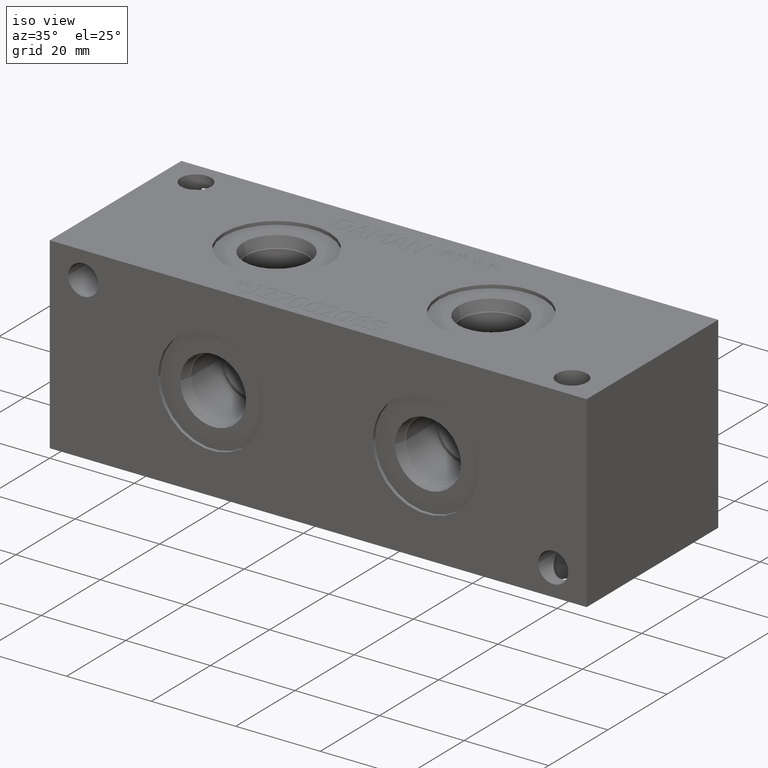
[diagram: clean part render]
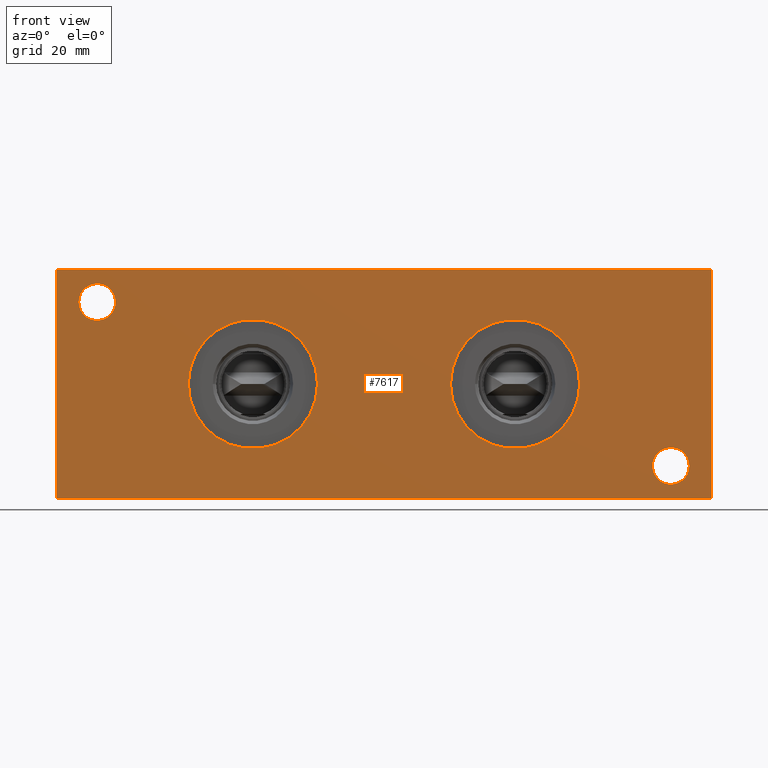
[diagram: tour spotlight — one face highlighted and labeled with its STEP entity id]
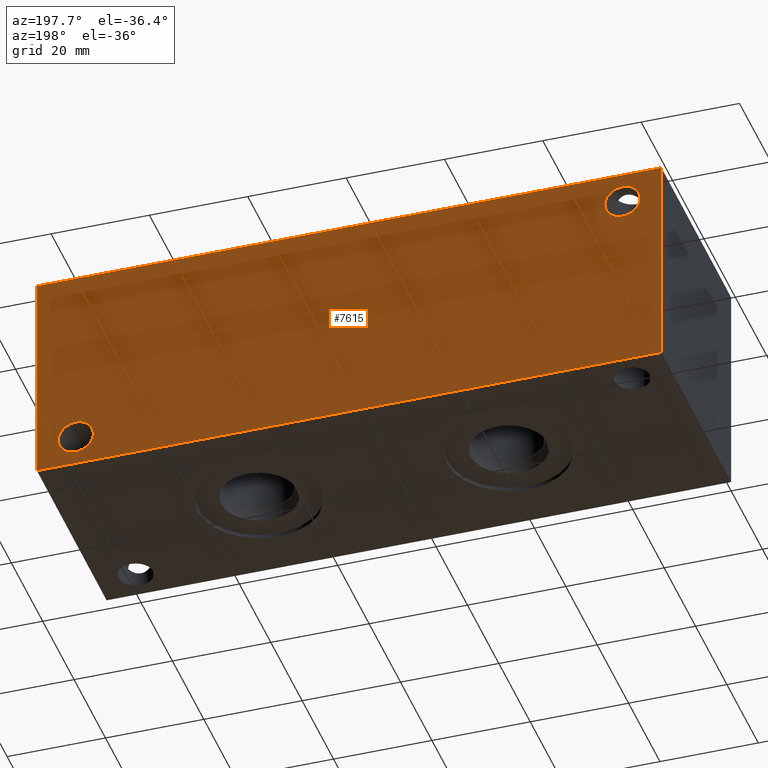
[diagram: tour spotlight — one face highlighted and labeled with its STEP entity id]
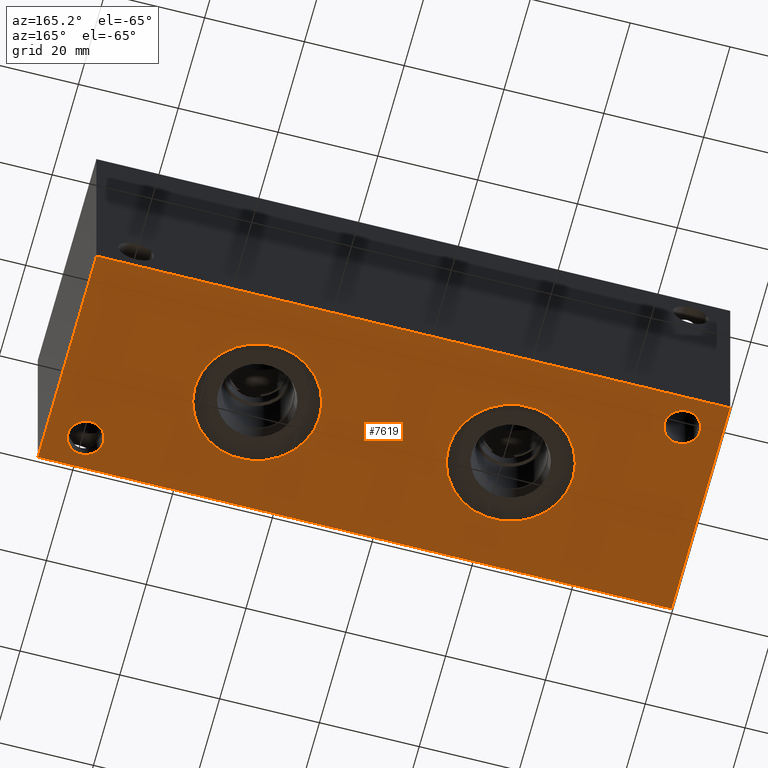
[diagram: tour spotlight — one face highlighted and labeled with its STEP entity id]
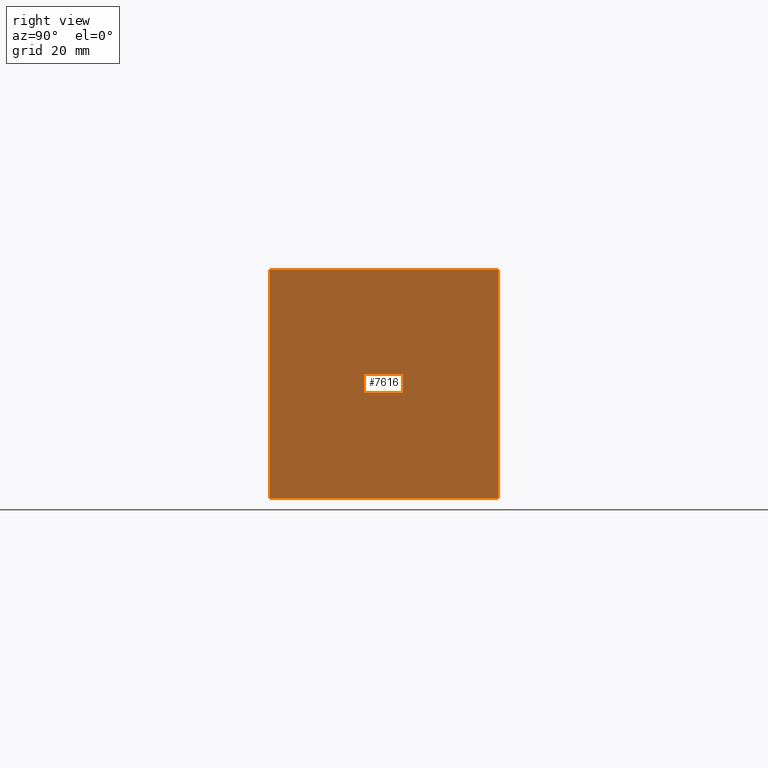
[diagram: tour spotlight — one face highlighted and labeled with its STEP entity id]
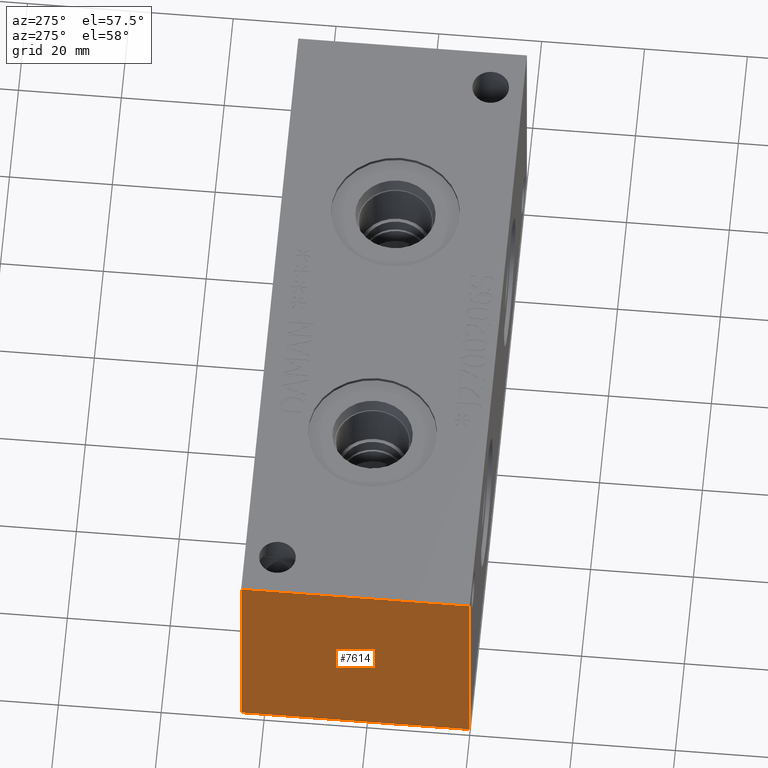
[diagram: tour spotlight — one face highlighted and labeled with its STEP entity id]
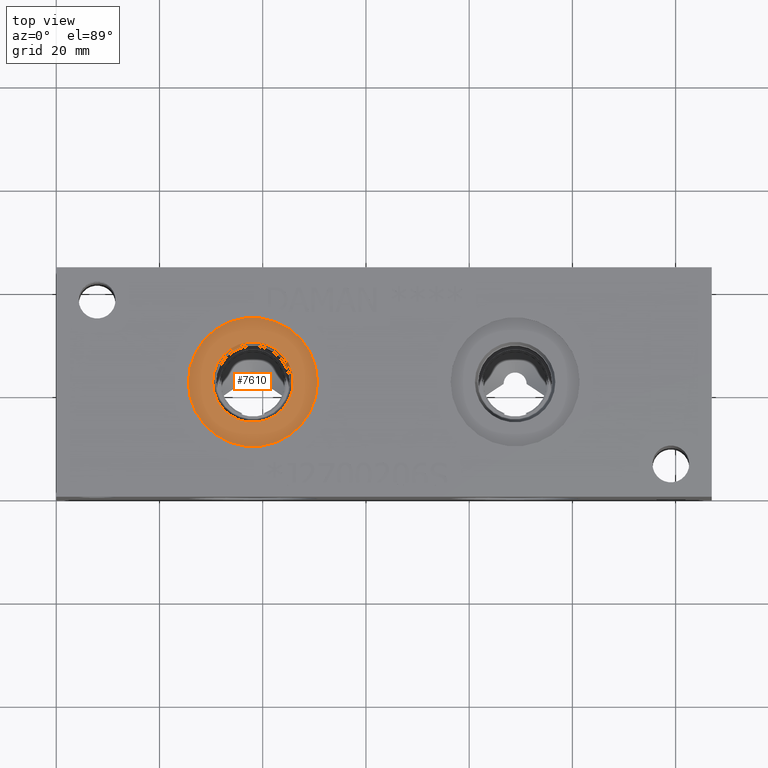
[diagram: tour spotlight — one face highlighted and labeled with its STEP entity id]
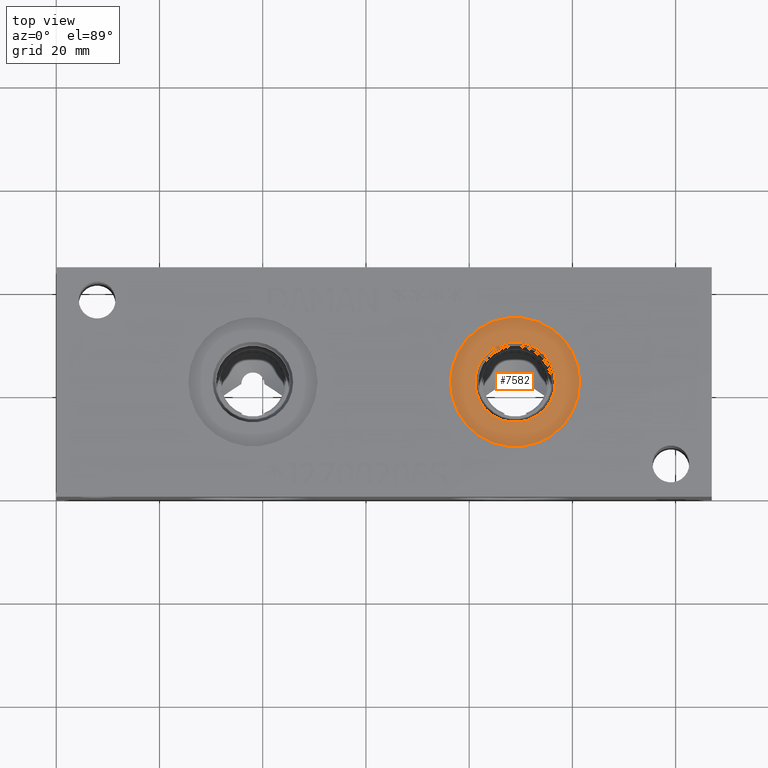
[diagram: tour spotlight — one face highlighted and labeled with its STEP entity id]
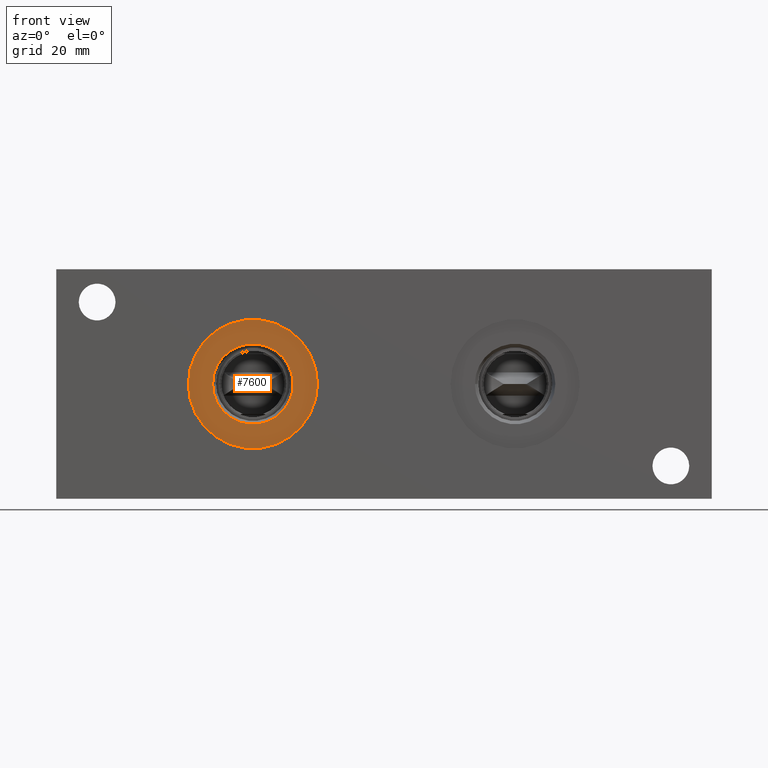
[diagram: tour spotlight — one face highlighted and labeled with its STEP entity id]
A machine part: a face-by-face anatomy tour. The part has 391 B-rep faces; the first image is the clean iso view, then the 8 largest visible faces are spotlighted one at a time (largest first), each with its STEP entity span.

Face 1 — front view, entity #7617. In plain terms, the highlighted planar face has unit normal (0, -1, 0).
Definition (entity closure, byte-faithful):
#164=CIRCLE('',#7944,12.5095);
#165=CIRCLE('',#7945,12.5095);
#190=CIRCLE('',#7986,3.5687);
#191=CIRCLE('',#7987,3.5687);
#193=CIRCLE('',#7995,3.5687);
#194=CIRCLE('',#7996,3.5687);
#205=CIRCLE('',#8022,12.5095);
#206=CIRCLE('',#8023,12.5095);
#273=FACE_BOUND('',#1446,.T.);
#274=FACE_BOUND('',#1447,.T.);
#275=FACE_BOUND('',#1448,.T.);
#276=FACE_BOUND('',#1449,.T.);
#1010=FACE_OUTER_BOUND('',#1445,.T.);
#1445=EDGE_LOOP('',(#6688,#6689,#6690,#6691));
#1446=EDGE_LOOP('',(#6692,#6693));
#1447=EDGE_LOOP('',(#6694,#6695));
#1448=EDGE_LOOP('',(#6696,#6697));
#1449=EDGE_LOOP('',(#6698,#6699));
#1704=LINE('',#11789,#2385);
#2130=LINE('',#13239,#2811);
#2135=LINE('',#13248,#2816);
#2136=LINE('',#13250,#2817);
#2385=VECTOR('',#8438,10.);
#2811=VECTOR('',#9596,10.);
#2816=VECTOR('',#9605,10.);
#2817=VECTOR('',#9608,10.);
#3114=VERTEX_POINT('',#11787);
#3115=VERTEX_POINT('',#11788);
#3455=VERTEX_POINT('',#13013);
#3456=VERTEX_POINT('',#13014);
#3479=VERTEX_POINT('',#13089);
#3480=VERTEX_POINT('',#13090);
#3484=VERTEX_POINT('',#13105);
#3485=VERTEX_POINT('',#13106);
#3496=VERTEX_POINT('',#13161);
#3497=VERTEX_POINT('',#13162);
#3521=VERTEX_POINT('',#13237);
#3523=VERTEX_POINT('',#13246);
#3968=EDGE_CURVE('',#3114,#3115,#1704,.T.);
#4474=EDGE_CURVE('',#3455,#3456,#164,.T.);
#4475=EDGE_CURVE('',#3456,#3455,#165,.T.);
#4510=EDGE_CURVE('',#3479,#3480,#190,.T.);
#4511=EDGE_CURVE('',#3480,#3479,#191,.T.);
#4519=EDGE_CURVE('',#3484,#3485,#193,.T.);
#4520=EDGE_CURVE('',#3485,#3484,#194,.T.);
#4543=EDGE_CURVE('',#3496,#3497,#205,.T.);
#4544=EDGE_CURVE('',#3497,#3496,#206,.T.);
#4580=EDGE_CURVE('',#3521,#3114,#2130,.T.);
#4585=EDGE_CURVE('',#3523,#3115,#2135,.T.);
#4586=EDGE_CURVE('',#3521,#3523,#2136,.T.);
#6688=ORIENTED_EDGE('',*,*,#4586,.T.);
#6689=ORIENTED_EDGE('',*,*,#4585,.T.);
#6690=ORIENTED_EDGE('',*,*,#3968,.F.);
#6691=ORIENTED_EDGE('',*,*,#4580,.F.);
#6692=ORIENTED_EDGE('',*,*,#4474,.T.);
#6693=ORIENTED_EDGE('',*,*,#4475,.T.);
#6694=ORIENTED_EDGE('',*,*,#4510,.T.);
#6695=ORIENTED_EDGE('',*,*,#4511,.T.);
#6696=ORIENTED_EDGE('',*,*,#4519,.T.);
#6697=ORIENTED_EDGE('',*,*,#4520,.T.);
#6698=ORIENTED_EDGE('',*,*,#4543,.T.);
#6699=ORIENTED_EDGE('',*,*,#4544,.T.);
#6927=PLANE('',#8063);
#7617=ADVANCED_FACE('',(#1010,#273,#274,#275,#276),#6927,.T.);
#7944=AXIS2_PLACEMENT_3D('',#13015,#9330,#9331);
#7945=AXIS2_PLACEMENT_3D('',#13016,#9332,#9333);
#7986=AXIS2_PLACEMENT_3D('',#13091,#9424,#9425);
#7987=AXIS2_PLACEMENT_3D('',#13092,#9426,#9427);
#7995=AXIS2_PLACEMENT_3D('',#13107,#9444,#9445);
#7996=AXIS2_PLACEMENT_3D('',#13108,#9446,#9447);
#8022=AXIS2_PLACEMENT_3D('',#13163,#9505,#9506);
#8023=AXIS2_PLACEMENT_3D('',#13164,#9507,#9508);
#8063=AXIS2_PLACEMENT_3D('',#13249,#9606,#9607);
#8438=DIRECTION('',(1.,0.,0.));
#9330=DIRECTION('center_axis',(0.,1.,0.));
#9331=DIRECTION('ref_axis',(1.,0.,0.));
#9332=DIRECTION('center_axis',(0.,1.,0.));
#9333=DIRECTION('ref_axis',(1.,0.,0.));
#9424=DIRECTION('center_axis',(0.,1.,0.));
#9425=DIRECTION('ref_axis',(1.,0.,0.));
#9426=DIRECTION('center_axis',(0.,1.,0.));
#9427=DIRECTION('ref_axis',(1.,0.,0.));
#9444=DIRECTION('center_axis',(0.,1.,0.));
#9445=DIRECTION('ref_axis',(1.,0.,0.));
#9446=DIRECTION('center_axis',(0.,1.,0.));
#9447=DIRECTION('ref_axis',(1.,0.,0.));
#9505=DIRECTION('center_axis',(0.,1.,0.));
#9506=DIRECTION('ref_axis',(1.,0.,0.));
#9507=DIRECTION('center_axis',(0.,1.,0.));
#9508=DIRECTION('ref_axis',(1.,0.,0.));
#9596=DIRECTION('',(0.,0.,1.));
#9605=DIRECTION('',(0.,0.,1.));
#9606=DIRECTION('center_axis',(0.,-1.,0.));
#9607=DIRECTION('ref_axis',(1.,0.,0.));
#9608=DIRECTION('',(1.,0.,0.));
#11787=CARTESIAN_POINT('',(0.,0.,44.45));
#11788=CARTESIAN_POINT('',(127.,0.,44.45));
#11789=CARTESIAN_POINT('',(0.,0.,44.45));
#13013=CARTESIAN_POINT('',(101.4095,0.,22.225));
#13014=CARTESIAN_POINT('',(76.3905,0.,22.225));
#13015=CARTESIAN_POINT('Origin',(88.9,0.,22.225));
#13016=CARTESIAN_POINT('Origin',(88.9,0.,22.225));
#13089=CARTESIAN_POINT('',(11.4935,0.,38.1));
#13090=CARTESIAN_POINT('',(4.3561,-1.77635683940025E-14,38.1));
#13091=CARTESIAN_POINT('Origin',(7.9248,0.,38.1));
#13092=CARTESIAN_POINT('Origin',(7.9248,0.,38.1));
#13105=CARTESIAN_POINT('',(122.6439,0.,6.35));
#13106=CARTESIAN_POINT('',(115.5065,-1.77635683940025E-14,6.35));
#13107=CARTESIAN_POINT('Origin',(119.0752,0.,6.35));
#13108=CARTESIAN_POINT('Origin',(119.0752,0.,6.35));
#13161=CARTESIAN_POINT('',(50.6095,0.,22.225));
#13162=CARTESIAN_POINT('',(25.5905,0.,22.225));
#13163=CARTESIAN_POINT('Origin',(38.1,0.,22.225));
#13164=CARTESIAN_POINT('Origin',(38.1,0.,22.225));
#13237=CARTESIAN_POINT('',(0.,0.,0.));
#13239=CARTESIAN_POINT('',(0.,0.,0.));
#13246=CARTESIAN_POINT('',(127.,0.,0.));
#13248=CARTESIAN_POINT('',(127.,0.,0.));
#13249=CARTESIAN_POINT('Origin',(0.,0.,0.));
#13250=CARTESIAN_POINT('',(0.,0.,0.));

Face 2 — auxiliary view, entity #7615. In plain terms, the highlighted planar face has unit normal (0, 1, 0).
Definition (entity closure, byte-faithful):
#192=CIRCLE('',#7993,3.5687);
#195=CIRCLE('',#8002,3.5687);
#271=FACE_BOUND('',#1442,.T.);
#272=FACE_BOUND('',#1443,.T.);
#1008=FACE_OUTER_BOUND('',#1441,.T.);
#1441=EDGE_LOOP('',(#6678,#6679,#6680,#6681));
#1442=EDGE_LOOP('',(#6682));
#1443=EDGE_LOOP('',(#6683));
#1706=LINE('',#11793,#2387);
#2131=LINE('',#13240,#2812);
#2132=LINE('',#13243,#2813);
#2133=LINE('',#13244,#2814);
#2387=VECTOR('',#8440,10.);
#2812=VECTOR('',#9597,10.);
#2813=VECTOR('',#9600,10.);
#2814=VECTOR('',#9601,10.);
#3116=VERTEX_POINT('',#11790);
#3117=VERTEX_POINT('',#11792);
#3483=VERTEX_POINT('',#13101);
#3488=VERTEX_POINT('',#13117);
#3520=VERTEX_POINT('',#13236);
#3522=VERTEX_POINT('',#13242);
#3970=EDGE_CURVE('',#3116,#3117,#1706,.T.);
#4518=EDGE_CURVE('',#3483,#3483,#192,.T.);
#4527=EDGE_CURVE('',#3488,#3488,#195,.T.);
#4581=EDGE_CURVE('',#3520,#3117,#2131,.T.);
#4582=EDGE_CURVE('',#3522,#3520,#2132,.T.);
#4583=EDGE_CURVE('',#3522,#3116,#2133,.T.);
#6678=ORIENTED_EDGE('',*,*,#4582,.T.);
#6679=ORIENTED_EDGE('',*,*,#4581,.T.);
#6680=ORIENTED_EDGE('',*,*,#3970,.F.);
#6681=ORIENTED_EDGE('',*,*,#4583,.F.);
#6682=ORIENTED_EDGE('',*,*,#4518,.T.);
#6683=ORIENTED_EDGE('',*,*,#4527,.T.);
#6925=PLANE('',#8061);
#7615=ADVANCED_FACE('',(#1008,#271,#272),#6925,.T.);
#7993=AXIS2_PLACEMENT_3D('',#13103,#9440,#9441);
#8002=AXIS2_PLACEMENT_3D('',#13119,#9460,#9461);
#8061=AXIS2_PLACEMENT_3D('',#13241,#9598,#9599);
#8440=DIRECTION('',(-1.,0.,0.));
#9440=DIRECTION('center_axis',(0.,-1.,0.));
#9441=DIRECTION('ref_axis',(1.,0.,0.));
#9460=DIRECTION('center_axis',(0.,-1.,0.));
#9461=DIRECTION('ref_axis',(1.,0.,0.));
#9597=DIRECTION('',(0.,0.,1.));
#9598=DIRECTION('center_axis',(0.,1.,0.));
#9599=DIRECTION('ref_axis',(-1.,0.,0.));
#9600=DIRECTION('',(-1.,0.,0.));
#9601=DIRECTION('',(0.,0.,1.));
#11790=CARTESIAN_POINT('',(127.,44.45,44.45));
#11792=CARTESIAN_POINT('',(0.,44.45,44.45));
#11793=CARTESIAN_POINT('',(127.,44.45,44.45));
#13101=CARTESIAN_POINT('',(4.3561,44.45,38.1));
#13103=CARTESIAN_POINT('Origin',(7.9248,44.45,38.1));
#13117=CARTESIAN_POINT('',(115.5065,44.45,6.35));
#13119=CARTESIAN_POINT('Origin',(119.0752,44.45,6.35));
#13236=CARTESIAN_POINT('',(0.,44.45,0.));
#13240=CARTESIAN_POINT('',(0.,44.45,0.));
#13241=CARTESIAN_POINT('Origin',(127.,44.45,0.));
#13242=CARTESIAN_POINT('',(127.,44.45,0.));
#13243=CARTESIAN_POINT('',(127.,44.45,0.));
#13244=CARTESIAN_POINT('',(127.,44.45,0.));

Face 3 — auxiliary view, entity #7619. In plain terms, the highlighted planar face has unit normal (0, 0, 1).
Definition (entity closure, byte-faithful):
#109=CIRCLE('',#7842,12.5095);
#110=CIRCLE('',#7843,12.5095);
#154=CIRCLE('',#7929,12.5095);
#155=CIRCLE('',#7930,12.5095);
#215=CIRCLE('',#8037,3.5687);
#216=CIRCLE('',#8039,3.5687);
#277=FACE_BOUND('',#1452,.T.);
#278=FACE_BOUND('',#1453,.T.);
#279=FACE_BOUND('',#1454,.T.);
#280=FACE_BOUND('',#1455,.T.);
#1012=FACE_OUTER_BOUND('',#1451,.T.);
#1451=EDGE_LOOP('',(#6703,#6704,#6705,#6706));
#1452=EDGE_LOOP('',(#6707,#6708));
#1453=EDGE_LOOP('',(#6709,#6710));
#1454=EDGE_LOOP('',(#6711));
#1455=EDGE_LOOP('',(#6712));
#2129=LINE('',#13238,#2810);
#2132=LINE('',#13243,#2813);
#2134=LINE('',#13247,#2815);
#2136=LINE('',#13250,#2817);
#2810=VECTOR('',#9595,10.);
#2813=VECTOR('',#9600,10.);
#2815=VECTOR('',#9604,10.);
#2817=VECTOR('',#9608,10.);
#3388=VERTEX_POINT('',#12717);
#3389=VERTEX_POINT('',#12718);
#3445=VERTEX_POINT('',#12984);
#3446=VERTEX_POINT('',#12985);
#3506=VERTEX_POINT('',#13190);
#3507=VERTEX_POINT('',#13194);
#3520=VERTEX_POINT('',#13236);
#3521=VERTEX_POINT('',#13237);
#3522=VERTEX_POINT('',#13242);
#3523=VERTEX_POINT('',#13246);
#4373=EDGE_CURVE('',#3388,#3389,#109,.T.);
#4374=EDGE_CURVE('',#3389,#3388,#110,.T.);
#4460=EDGE_CURVE('',#3445,#3446,#154,.T.);
#4461=EDGE_CURVE('',#3446,#3445,#155,.T.);
#4558=EDGE_CURVE('',#3506,#3506,#215,.T.);
#4560=EDGE_CURVE('',#3507,#3507,#216,.T.);
#4579=EDGE_CURVE('',#3520,#3521,#2129,.T.);
#4582=EDGE_CURVE('',#3522,#3520,#2132,.T.);
#4584=EDGE_CURVE('',#3523,#3522,#2134,.T.);
#4586=EDGE_CURVE('',#3521,#3523,#2136,.T.);
#6703=ORIENTED_EDGE('',*,*,#4586,.F.);
#6704=ORIENTED_EDGE('',*,*,#4579,.F.);
#6705=ORIENTED_EDGE('',*,*,#4582,.F.);
#6706=ORIENTED_EDGE('',*,*,#4584,.F.);
#6707=ORIENTED_EDGE('',*,*,#4373,.T.);
#6708=ORIENTED_EDGE('',*,*,#4374,.T.);
#6709=ORIENTED_EDGE('',*,*,#4460,.T.);
#6710=ORIENTED_EDGE('',*,*,#4461,.T.);
#6711=ORIENTED_EDGE('',*,*,#4558,.T.);
#6712=ORIENTED_EDGE('',*,*,#4560,.T.);
#6929=PLANE('',#8065);
#7619=ADVANCED_FACE('',(#1012,#277,#278,#279,#280),#6929,.F.);
#7842=AXIS2_PLACEMENT_3D('',#12719,#9113,#9114);
#7843=AXIS2_PLACEMENT_3D('',#12720,#9115,#9116);
#7929=AXIS2_PLACEMENT_3D('',#12986,#9296,#9297);
#7930=AXIS2_PLACEMENT_3D('',#12987,#9298,#9299);
#8037=AXIS2_PLACEMENT_3D('',#13192,#9540,#9541);
#8039=AXIS2_PLACEMENT_3D('',#13196,#9545,#9546);
#8065=AXIS2_PLACEMENT_3D('',#13252,#9611,#9612);
#9113=DIRECTION('center_axis',(0.,0.,1.));
#9114=DIRECTION('ref_axis',(1.,0.,0.));
#9115=DIRECTION('center_axis',(0.,0.,1.));
#9116=DIRECTION('ref_axis',(1.,0.,0.));
#9296=DIRECTION('center_axis',(0.,0.,1.));
#9297=DIRECTION('ref_axis',(1.,0.,0.));
#9298=DIRECTION('center_axis',(0.,0.,1.));
#9299=DIRECTION('ref_axis',(1.,0.,0.));
#9540=DIRECTION('center_axis',(0.,0.,1.));
#9541=DIRECTION('ref_axis',(1.,0.,0.));
#9545=DIRECTION('center_axis',(0.,0.,1.));
#9546=DIRECTION('ref_axis',(1.,0.,0.));
#9595=DIRECTION('',(0.,-1.,0.));
#9600=DIRECTION('',(-1.,0.,0.));
#9604=DIRECTION('',(0.,1.,0.));
#9608=DIRECTION('',(1.,0.,0.));
#9611=DIRECTION('center_axis',(0.,0.,1.));
#9612=DIRECTION('ref_axis',(1.,0.,0.));
#12717=CARTESIAN_POINT('',(101.4095,22.225,0.));
#12718=CARTESIAN_POINT('',(76.3905,22.225,0.));
#12719=CARTESIAN_POINT('Origin',(88.9,22.225,0.));
#12720=CARTESIAN_POINT('Origin',(88.9,22.225,0.));
#12984=CARTESIAN_POINT('',(50.6095,22.225,0.));
#12985=CARTESIAN_POINT('',(25.5905,22.225,0.));
#12986=CARTESIAN_POINT('Origin',(38.1,22.225,0.));
#12987=CARTESIAN_POINT('Origin',(38.1,22.225,0.));
#13190=CARTESIAN_POINT('',(4.3561,38.1,0.));
#13192=CARTESIAN_POINT('Origin',(7.9248,38.1,0.));
#13194=CARTESIAN_POINT('',(115.5065,6.35,0.));
#13196=CARTESIAN_POINT('Origin',(119.0752,6.35,0.));
#13236=CARTESIAN_POINT('',(0.,44.45,0.));
#13237=CARTESIAN_POINT('',(0.,0.,0.));
#13238=CARTESIAN_POINT('',(0.,44.45,0.));
#13242=CARTESIAN_POINT('',(127.,44.45,0.));
#13243=CARTESIAN_POINT('',(127.,44.45,0.));
#13246=CARTESIAN_POINT('',(127.,0.,0.));
#13247=CARTESIAN_POINT('',(127.,0.,0.));
#13250=CARTESIAN_POINT('',(0.,0.,0.));
#13252=CARTESIAN_POINT('Origin',(63.5,22.225,0.));

Face 4 — right view, entity #7616. In plain terms, the highlighted planar face has unit normal (1, 0, 0).
Definition (entity closure, byte-faithful):
#1009=FACE_OUTER_BOUND('',#1444,.T.);
#1444=EDGE_LOOP('',(#6684,#6685,#6686,#6687));
#1705=LINE('',#11791,#2386);
#2133=LINE('',#13244,#2814);
#2134=LINE('',#13247,#2815);
#2135=LINE('',#13248,#2816);
#2386=VECTOR('',#8439,10.);
#2814=VECTOR('',#9601,10.);
#2815=VECTOR('',#9604,10.);
#2816=VECTOR('',#9605,10.);
#3115=VERTEX_POINT('',#11788);
#3116=VERTEX_POINT('',#11790);
#3522=VERTEX_POINT('',#13242);
#3523=VERTEX_POINT('',#13246);
#3969=EDGE_CURVE('',#3115,#3116,#1705,.T.);
#4583=EDGE_CURVE('',#3522,#3116,#2133,.T.);
#4584=EDGE_CURVE('',#3523,#3522,#2134,.T.);
#4585=EDGE_CURVE('',#3523,#3115,#2135,.T.);
#6684=ORIENTED_EDGE('',*,*,#4584,.T.);
#6685=ORIENTED_EDGE('',*,*,#4583,.T.);
#6686=ORIENTED_EDGE('',*,*,#3969,.F.);
#6687=ORIENTED_EDGE('',*,*,#4585,.F.);
#6926=PLANE('',#8062);
#7616=ADVANCED_FACE('',(#1009),#6926,.T.);
#8062=AXIS2_PLACEMENT_3D('',#13245,#9602,#9603);
#8439=DIRECTION('',(0.,1.,0.));
#9601=DIRECTION('',(0.,0.,1.));
#9602=DIRECTION('center_axis',(1.,0.,0.));
#9603=DIRECTION('ref_axis',(0.,1.,0.));
#9604=DIRECTION('',(0.,1.,0.));
#9605=DIRECTION('',(0.,0.,1.));
#11788=CARTESIAN_POINT('',(127.,0.,44.45));
#11790=CARTESIAN_POINT('',(127.,44.45,44.45));
#11791=CARTESIAN_POINT('',(127.,0.,44.45));
#13242=CARTESIAN_POINT('',(127.,44.45,0.));
#13244=CARTESIAN_POINT('',(127.,44.45,0.));
#13245=CARTESIAN_POINT('Origin',(127.,0.,0.));
#13246=CARTESIAN_POINT('',(127.,0.,0.));
#13247=CARTESIAN_POINT('',(127.,0.,0.));
#13248=CARTESIAN_POINT('',(127.,0.,0.));

Face 5 — auxiliary view, entity #7614. In plain terms, the highlighted planar face has unit normal (-1, 0, 0).
Definition (entity closure, byte-faithful):
#1007=FACE_OUTER_BOUND('',#1440,.T.);
#1440=EDGE_LOOP('',(#6674,#6675,#6676,#6677));
#1707=LINE('',#11794,#2388);
#2129=LINE('',#13238,#2810);
#2130=LINE('',#13239,#2811);
#2131=LINE('',#13240,#2812);
#2388=VECTOR('',#8441,10.);
#2810=VECTOR('',#9595,10.);
#2811=VECTOR('',#9596,10.);
#2812=VECTOR('',#9597,10.);
#3114=VERTEX_POINT('',#11787);
#3117=VERTEX_POINT('',#11792);
#3520=VERTEX_POINT('',#13236);
#3521=VERTEX_POINT('',#13237);
#3971=EDGE_CURVE('',#3117,#3114,#1707,.T.);
#4579=EDGE_CURVE('',#3520,#3521,#2129,.T.);
#4580=EDGE_CURVE('',#3521,#3114,#2130,.T.);
#4581=EDGE_CURVE('',#3520,#3117,#2131,.T.);
#6674=ORIENTED_EDGE('',*,*,#4579,.T.);
#6675=ORIENTED_EDGE('',*,*,#4580,.T.);
#6676=ORIENTED_EDGE('',*,*,#3971,.F.);
#6677=ORIENTED_EDGE('',*,*,#4581,.F.);
#6924=PLANE('',#8060);
#7614=ADVANCED_FACE('',(#1007),#6924,.T.);
#8060=AXIS2_PLACEMENT_3D('',#13235,#9593,#9594);
#8441=DIRECTION('',(0.,-1.,0.));
#9593=DIRECTION('center_axis',(-1.,0.,0.));
#9594=DIRECTION('ref_axis',(0.,-1.,0.));
#9595=DIRECTION('',(0.,-1.,0.));
#9596=DIRECTION('',(0.,0.,1.));
#9597=DIRECTION('',(0.,0.,1.));
#11787=CARTESIAN_POINT('',(0.,0.,44.45));
#11792=CARTESIAN_POINT('',(0.,44.45,44.45));
#11794=CARTESIAN_POINT('',(0.,44.45,44.45));
#13235=CARTESIAN_POINT('Origin',(0.,44.45,0.));
#13236=CARTESIAN_POINT('',(0.,44.45,0.));
#13237=CARTESIAN_POINT('',(0.,0.,0.));
#13238=CARTESIAN_POINT('',(0.,44.45,0.));
#13239=CARTESIAN_POINT('',(0.,0.,0.));
#13240=CARTESIAN_POINT('',(0.,44.45,0.));

Face 6 — top view, entity #7610. In plain terms, the highlighted planar face has unit normal (0, 0, -1).
Definition (entity closure, byte-faithful):
#221=CIRCLE('',#8048,12.5095);
#222=CIRCLE('',#8049,12.5095);
#223=CIRCLE('',#8051,7.7978);
#224=CIRCLE('',#8052,7.7978);
#270=FACE_BOUND('',#1436,.T.);
#1003=FACE_OUTER_BOUND('',#1435,.T.);
#1435=EDGE_LOOP('',(#6653,#6654));
#1436=EDGE_LOOP('',(#6655,#6656));
#3512=VERTEX_POINT('',#13211);
#3513=VERTEX_POINT('',#13213);
#3514=VERTEX_POINT('',#13217);
#3515=VERTEX_POINT('',#13218);
#4568=EDGE_CURVE('',#3512,#3513,#221,.T.);
#4569=EDGE_CURVE('',#3513,#3512,#222,.T.);
#4570=EDGE_CURVE('',#3514,#3515,#223,.T.);
#4571=EDGE_CURVE('',#3515,#3514,#224,.T.);
#6653=ORIENTED_EDGE('',*,*,#4569,.F.);
#6654=ORIENTED_EDGE('',*,*,#4568,.F.);
#6655=ORIENTED_EDGE('',*,*,#4570,.T.);
#6656=ORIENTED_EDGE('',*,*,#4571,.T.);
#6923=PLANE('',#8050);
#7610=ADVANCED_FACE('',(#1003,#270),#6923,.F.);
#8048=AXIS2_PLACEMENT_3D('',#13214,#9566,#9567);
#8049=AXIS2_PLACEMENT_3D('',#13215,#9568,#9569);
#8050=AXIS2_PLACEMENT_3D('',#13216,#9570,#9571);
#8051=AXIS2_PLACEMENT_3D('',#13219,#9572,#9573);
#8052=AXIS2_PLACEMENT_3D('',#13220,#9574,#9575);
#9566=DIRECTION('center_axis',(0.,0.,-1.));
#9567=DIRECTION('ref_axis',(1.,0.,0.));
#9568=DIRECTION('center_axis',(0.,0.,-1.));
#9569=DIRECTION('ref_axis',(1.,0.,0.));
#9570=DIRECTION('center_axis',(0.,0.,-1.));
#9571=DIRECTION('ref_axis',(-1.,0.,0.));
#9572=DIRECTION('center_axis',(0.,0.,-1.));
#9573=DIRECTION('ref_axis',(1.,0.,0.));
#9574=DIRECTION('center_axis',(0.,0.,-1.));
#9575=DIRECTION('ref_axis',(1.,0.,0.));
#13211=CARTESIAN_POINT('',(25.5905,22.225,43.6626));
#13213=CARTESIAN_POINT('',(50.6095,22.225,43.6626));
#13214=CARTESIAN_POINT('Origin',(38.1,22.225,43.6626));
#13215=CARTESIAN_POINT('Origin',(38.1,22.225,43.6626));
#13216=CARTESIAN_POINT('Origin',(45.8978,22.225,43.6626));
#13217=CARTESIAN_POINT('',(45.8978,22.225,43.6626));
#13218=CARTESIAN_POINT('',(30.3022,22.225,43.6626));
#13219=CARTESIAN_POINT('Origin',(38.1,22.225,43.6626));
#13220=CARTESIAN_POINT('Origin',(38.1,22.225,43.6626));

Face 7 — top view, entity #7582. In plain terms, the highlighted planar face has unit normal (0, 0, -1).
Definition (entity closure, byte-faithful):
#182=CIRCLE('',#7973,12.5095);
#183=CIRCLE('',#7974,12.5095);
#184=CIRCLE('',#7976,7.79780000000001);
#185=CIRCLE('',#7977,7.79780000000001);
#265=FACE_BOUND('',#1403,.T.);
#975=FACE_OUTER_BOUND('',#1402,.T.);
#1402=EDGE_LOOP('',(#6502,#6503));
#1403=EDGE_LOOP('',(#6504,#6505));
#3471=VERTEX_POINT('',#13064);
#3472=VERTEX_POINT('',#13066);
#3473=VERTEX_POINT('',#13070);
#3474=VERTEX_POINT('',#13071);
#4499=EDGE_CURVE('',#3471,#3472,#182,.T.);
#4500=EDGE_CURVE('',#3472,#3471,#183,.T.);
#4501=EDGE_CURVE('',#3473,#3474,#184,.T.);
#4502=EDGE_CURVE('',#3474,#3473,#185,.T.);
#6502=ORIENTED_EDGE('',*,*,#4500,.F.);
#6503=ORIENTED_EDGE('',*,*,#4499,.F.);
#6504=ORIENTED_EDGE('',*,*,#4501,.T.);
#6505=ORIENTED_EDGE('',*,*,#4502,.T.);
#6918=PLANE('',#7975);
#7582=ADVANCED_FACE('',(#975,#265),#6918,.F.);
#7973=AXIS2_PLACEMENT_3D('',#13067,#9395,#9396);
#7974=AXIS2_PLACEMENT_3D('',#13068,#9397,#9398);
#7975=AXIS2_PLACEMENT_3D('',#13069,#9399,#9400);
#7976=AXIS2_PLACEMENT_3D('',#13072,#9401,#9402);
#7977=AXIS2_PLACEMENT_3D('',#13073,#9403,#9404);
#9395=DIRECTION('center_axis',(0.,0.,-1.));
#9396=DIRECTION('ref_axis',(1.,0.,0.));
#9397=DIRECTION('center_axis',(0.,0.,-1.));
#9398=DIRECTION('ref_axis',(1.,0.,0.));
#9399=DIRECTION('center_axis',(0.,0.,-1.));
#9400=DIRECTION('ref_axis',(-1.,0.,0.));
#9401=DIRECTION('center_axis',(0.,0.,-1.));
#9402=DIRECTION('ref_axis',(1.,0.,0.));
#9403=DIRECTION('center_axis',(0.,0.,-1.));
#9404=DIRECTION('ref_axis',(1.,0.,0.));
#13064=CARTESIAN_POINT('',(76.3905,22.225,43.6626));
#13066=CARTESIAN_POINT('',(101.4095,22.225,43.6626));
#13067=CARTESIAN_POINT('Origin',(88.9,22.225,43.6626));
#13068=CARTESIAN_POINT('Origin',(88.9,22.225,43.6626));
#13069=CARTESIAN_POINT('Origin',(96.6978,22.225,43.6626));
#13070=CARTESIAN_POINT('',(96.6978,22.225,43.6626));
#13071=CARTESIAN_POINT('',(81.1022,22.225,43.6626));
#13072=CARTESIAN_POINT('Origin',(88.9,22.225,43.6626));
#13073=CARTESIAN_POINT('Origin',(88.9,22.225,43.6626));

Face 8 — front view, entity #7600. In plain terms, the highlighted planar face has unit normal (0, 1, 0).
Definition (entity closure, byte-faithful):
#207=CIRCLE('',#8024,12.5095);
#208=CIRCLE('',#8025,12.5095);
#209=CIRCLE('',#8027,7.7978);
#210=CIRCLE('',#8028,7.7978);
#268=FACE_BOUND('',#1424,.T.);
#993=FACE_OUTER_BOUND('',#1423,.T.);
#1423=EDGE_LOOP('',(#6600,#6601));
#1424=EDGE_LOOP('',(#6602,#6603));
#3498=VERTEX_POINT('',#13165);
#3499=VERTEX_POINT('',#13167);
#3500=VERTEX_POINT('',#13171);
#3501=VERTEX_POINT('',#13172);
#4546=EDGE_CURVE('',#3498,#3499,#207,.T.);
#4547=EDGE_CURVE('',#3499,#3498,#208,.T.);
#4548=EDGE_CURVE('',#3500,#3501,#209,.T.);
#4549=EDGE_CURVE('',#3501,#3500,#210,.T.);
#6600=ORIENTED_EDGE('',*,*,#4547,.F.);
#6601=ORIENTED_EDGE('',*,*,#4546,.F.);
#6602=ORIENTED_EDGE('',*,*,#4548,.T.);
#6603=ORIENTED_EDGE('',*,*,#4549,.T.);
#6921=PLANE('',#8026);
#7600=ADVANCED_FACE('',(#993,#268),#6921,.F.);
#8024=AXIS2_PLACEMENT_3D('',#13168,#9510,#9511);
#8025=AXIS2_PLACEMENT_3D('',#13169,#9512,#9513);
#8026=AXIS2_PLACEMENT_3D('',#13170,#9514,#9515);
#8027=AXIS2_PLACEMENT_3D('',#13173,#9516,#9517);
#8028=AXIS2_PLACEMENT_3D('',#13174,#9518,#9519);
#9510=DIRECTION('center_axis',(0.,1.,0.));
#9511=DIRECTION('ref_axis',(1.,0.,0.));
#9512=DIRECTION('center_axis',(0.,1.,0.));
#9513=DIRECTION('ref_axis',(1.,0.,0.));
#9514=DIRECTION('center_axis',(0.,1.,0.));
#9515=DIRECTION('ref_axis',(0.,0.,1.));
#9516=DIRECTION('center_axis',(0.,1.,0.));
#9517=DIRECTION('ref_axis',(1.,0.,0.));
#9518=DIRECTION('center_axis',(0.,1.,0.));
#9519=DIRECTION('ref_axis',(1.,0.,0.));
#13165=CARTESIAN_POINT('',(25.5905,0.7874,22.225));
#13167=CARTESIAN_POINT('',(50.6095,0.7874,22.225));
#13168=CARTESIAN_POINT('Origin',(38.1,0.7874,22.225));
#13169=CARTESIAN_POINT('Origin',(38.1,0.7874,22.225));
#13170=CARTESIAN_POINT('Origin',(45.8978,0.7874,22.225));
#13171=CARTESIAN_POINT('',(45.8978,0.7874,22.225));
#13172=CARTESIAN_POINT('',(30.3022,0.787399999999999,22.225));
#13173=CARTESIAN_POINT('Origin',(38.1,0.7874,22.225));
#13174=CARTESIAN_POINT('Origin',(38.1,0.7874,22.225));